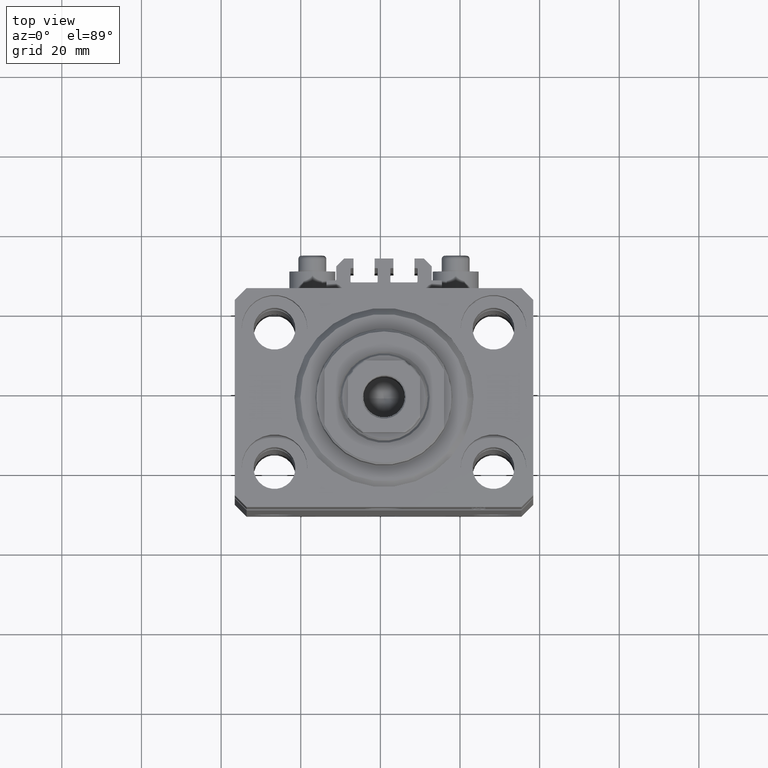
[diagram: clean part render]
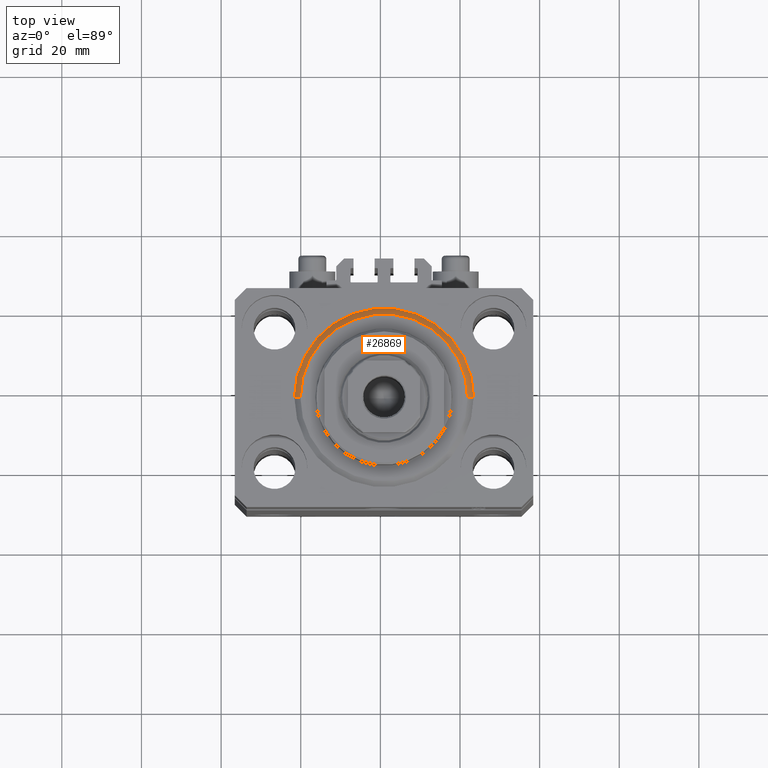
[diagram: same view with one face highlighted and labeled with its STEP entity id]
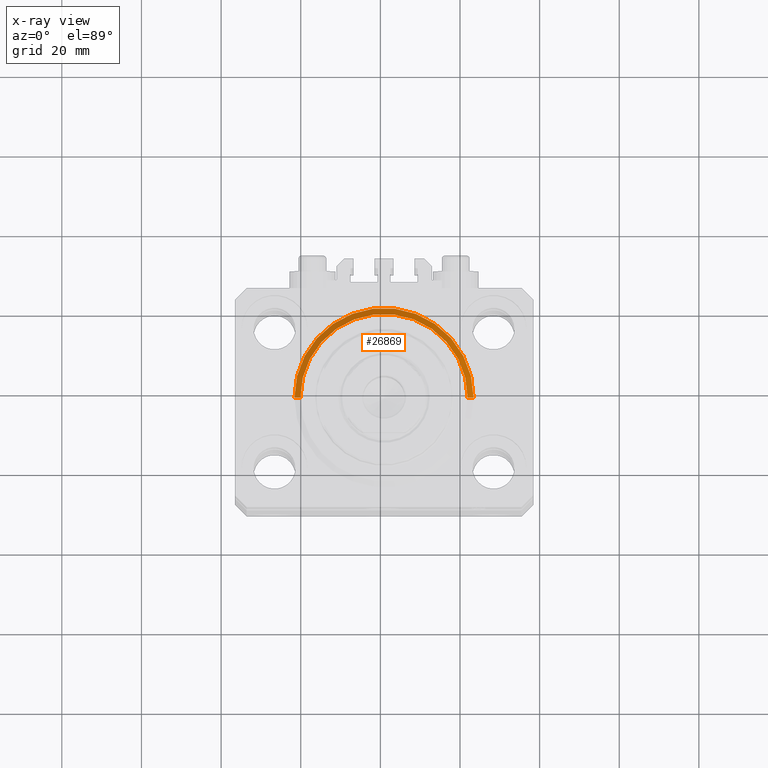
[diagram: x-ray of the same camera — body ghosted, the highlighted face saturated]
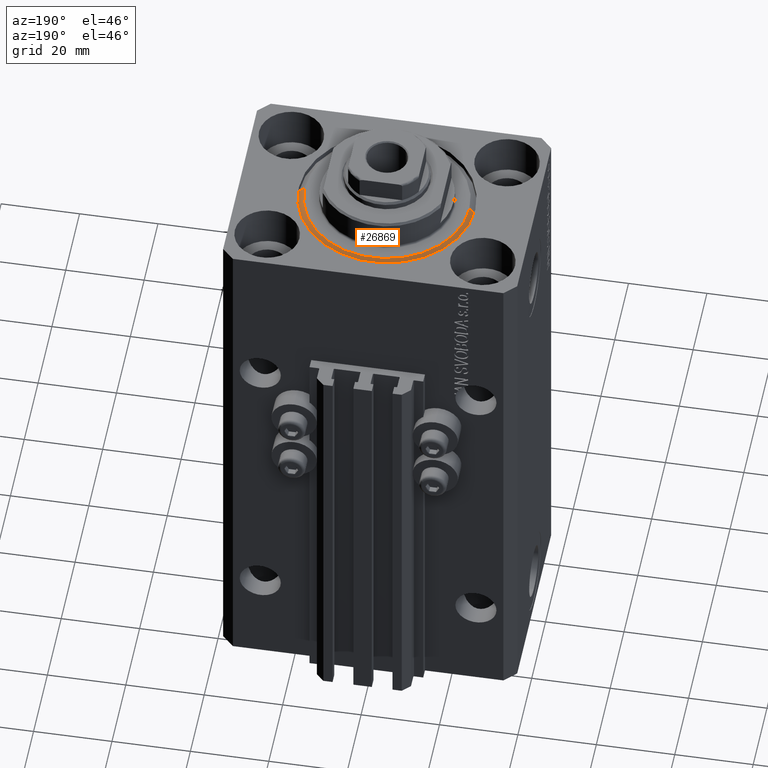
[diagram: same view with one face highlighted and labeled with its STEP entity id]
A machine part, top view. The second image highlights one B-rep face of the part: STEP entity #26869.
The next image is the same camera in x-ray: the body ghosted, the highlighted face saturated — about 0% of this face is hidden behind the body in this view.
A second angle (auxiliary view) of the same face is appended — the face is thin or edge-on in the first view.
In plain terms, the highlighted conical surface has half-angle 45 deg.
Its self-contained STEP definition (entity closure, byte-faithful):
#578 = CARTESIAN_POINT ( 'NONE',  ( 0.000000000000000000, 0.000000000000000000, 1.500000000000001332 ) ) ;
#940 = DIRECTION ( 'NONE',  ( 1.000000000000000000, 0.000000000000000000, 0.000000000000000000 ) ) ;
#3864 = CARTESIAN_POINT ( 'NONE',  ( 0.000000000000000000, 0.000000000000000000, 1.500000000000001332 ) ) ;
#3957 = DIRECTION ( 'NONE',  ( -0.7071067811865500152, 8.659560562354963673E-17, 0.7071067811865451302 ) ) ;
#4334 = DIRECTION ( 'NONE',  ( 0.7071067811865500152, 0.000000000000000000, 0.7071067811865451302 ) ) ;
#4581 = CARTESIAN_POINT ( 'NONE',  ( -22.50000000000000355, 0.000000000000000000, 1.500000000000001332 ) ) ;
#4781 = CARTESIAN_POINT ( 'NONE',  ( 0.000000000000000000, 0.000000000000000000, 0.000000000000000000 ) ) ;
#5075 = CIRCLE ( 'NONE', #13577, 20.99999999999998934 ) ;
#5998 = VECTOR ( 'NONE', #3957, 1000.000000000000114 ) ;
#6669 = VERTEX_POINT ( 'NONE', #16640 ) ;
#6971 = VERTEX_POINT ( 'NONE', #28902 ) ;
#9183 = CONICAL_SURFACE ( 'NONE', #35463, 22.50000000000000355, 0.7853981633974517207 ) ;
#9717 = EDGE_CURVE ( 'NONE', #6669, #32834, #5075, .T. ) ;
#10891 = FACE_OUTER_BOUND ( 'NONE', #35856, .T. ) ;
#11214 = ORIENTED_EDGE ( 'NONE', *, *, #24776, .F. ) ;
#11459 = LINE ( 'NONE', #33517, #5998 ) ;
#13577 = AXIS2_PLACEMENT_3D ( 'NONE', #4781, #41599, #34828 ) ;
#14863 = AXIS2_PLACEMENT_3D ( 'NONE', #578, #36467, #40095 ) ;
#16640 = CARTESIAN_POINT ( 'NONE',  ( -20.99999999999998934, 2.663606788145492628E-15, 0.000000000000000000 ) ) ;
#18104 = EDGE_CURVE ( 'NONE', #32834, #6971, #22757, .T. ) ;
#21266 = ORIENTED_EDGE ( 'NONE', *, *, #9717, .F. ) ;
#22633 = CIRCLE ( 'NONE', #14863, 22.50000000000000355 ) ;
#22757 = LINE ( 'NONE', #37053, #38635 ) ;
#24776 = EDGE_CURVE ( 'NONE', #6971, #44538, #22633, .T. ) ;
#26869 = ADVANCED_FACE ( 'NONE', ( #10891 ), #9183, .T. ) ;
#27835 = CARTESIAN_POINT ( 'NONE',  ( 20.99999999999998934, 0.000000000000000000, 0.000000000000000000 ) ) ;
#28902 = CARTESIAN_POINT ( 'NONE',  ( 22.50000000000000355, 2.755455298081545172E-15, 1.500000000000001332 ) ) ;
#29507 = ORIENTED_EDGE ( 'NONE', *, *, #32461, .T. ) ;
#32461 = EDGE_CURVE ( 'NONE', #6669, #44538, #11459, .T. ) ;
#32834 = VERTEX_POINT ( 'NONE', #27835 ) ;
#33517 = CARTESIAN_POINT ( 'NONE',  ( -22.50000000000000355, 2.755455298081545172E-15, 1.500000000000001332 ) ) ;
#34828 = DIRECTION ( 'NONE',  ( 1.000000000000000000, 0.000000000000000000, 0.000000000000000000 ) ) ;
#35463 = AXIS2_PLACEMENT_3D ( 'NONE', #3864, #41396, #940 ) ;
#35856 = EDGE_LOOP ( 'NONE', ( #21266, #29507, #11214, #47129 ) ) ;
#36467 = DIRECTION ( 'NONE',  ( -0.000000000000000000, -0.000000000000000000, 1.000000000000000000 ) ) ;
#37053 = CARTESIAN_POINT ( 'NONE',  ( 22.50000000000000355, 0.000000000000000000, 1.500000000000001332 ) ) ;
#38635 = VECTOR ( 'NONE', #4334, 1000.000000000000114 ) ;
#40095 = DIRECTION ( 'NONE',  ( 1.000000000000000000, 0.000000000000000000, 0.000000000000000000 ) ) ;
#41396 = DIRECTION ( 'NONE',  ( -0.000000000000000000, -0.000000000000000000, 1.000000000000000000 ) ) ;
#41599 = DIRECTION ( 'NONE',  ( -0.000000000000000000, -0.000000000000000000, -1.000000000000000000 ) ) ;
#44538 = VERTEX_POINT ( 'NONE', #4581 ) ;
#47129 = ORIENTED_EDGE ( 'NONE', *, *, #18104, .F. ) ;